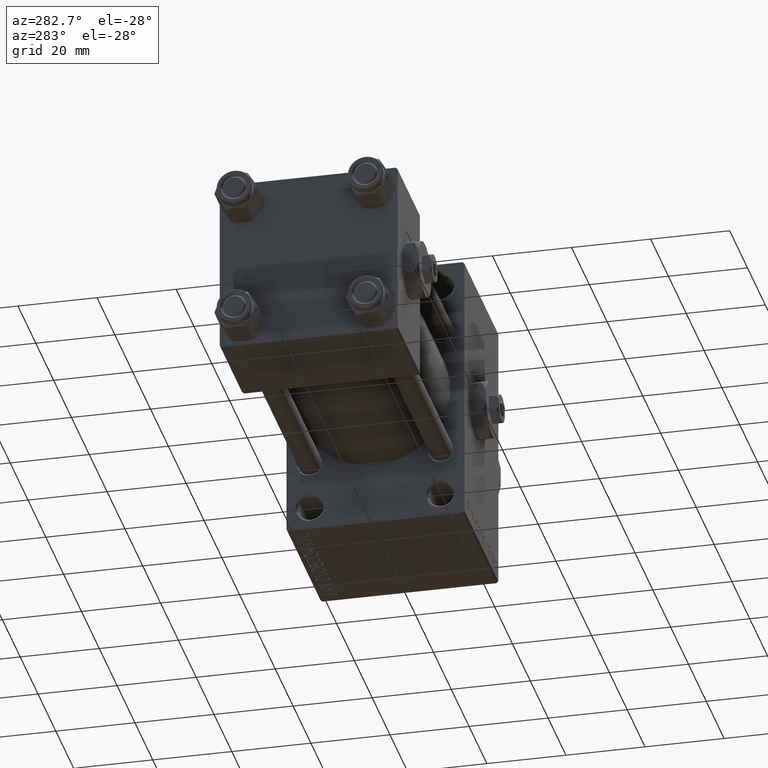
[diagram: clean part render]
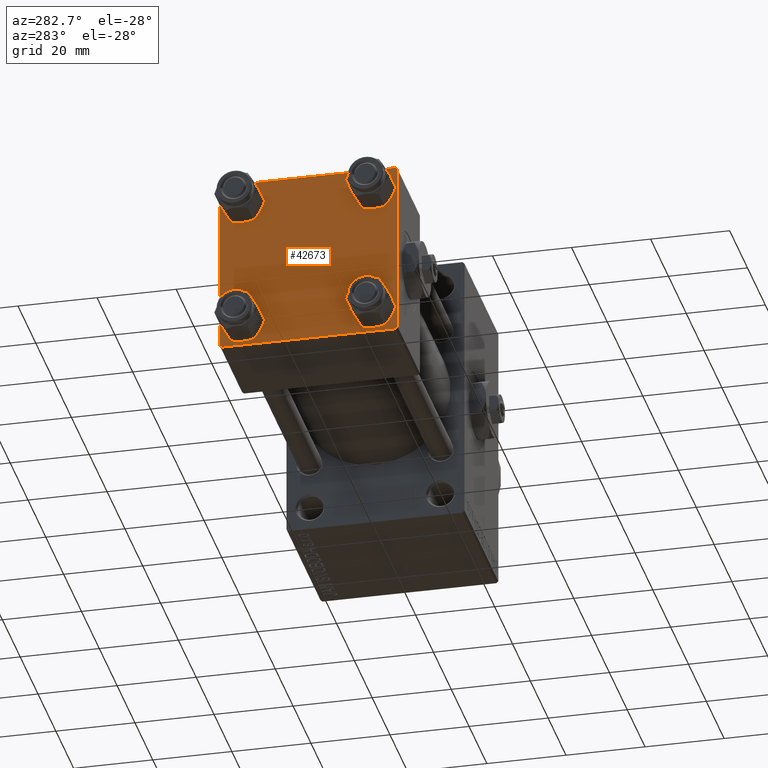
[diagram: same view with one face highlighted and labeled with its STEP entity id]
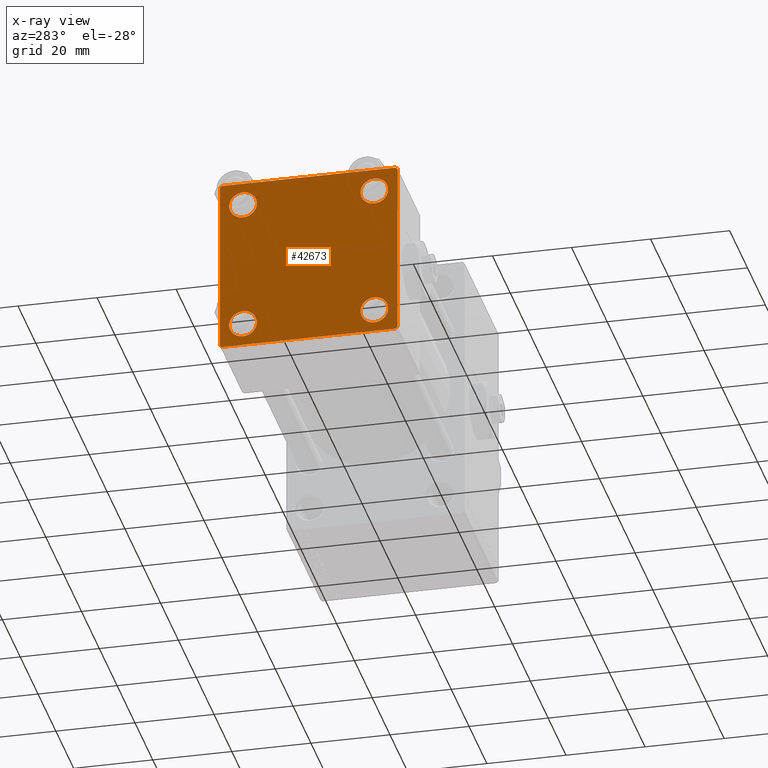
[diagram: x-ray of the same camera — body ghosted, the highlighted face saturated]
A machine part, auxiliary view. The second image highlights one B-rep face of the part: STEP entity #42673.
The next image is the same camera in x-ray: the body ghosted, the highlighted face saturated — about 0% of this face is hidden behind the body in this view.
In plain terms, the highlighted planar face has unit normal (-1, 0, 0).
Its self-contained STEP definition (entity closure, byte-faithful):
#55 = VERTEX_POINT ( 'NONE', #11902 ) ;
#270 = CARTESIAN_POINT ( 'NONE',  ( 0.000000000000000000, -16.59999999999999076, -16.60000000000000853 ) ) ;
#1012 = CIRCLE ( 'NONE', #21635, 3.499999999999996003 ) ;
#1420 = AXIS2_PLACEMENT_3D ( 'NONE', #37432, #19309, #12096 ) ;
#1573 = ORIENTED_EDGE ( 'NONE', *, *, #27414, .T. ) ;
#1712 = VERTEX_POINT ( 'NONE', #30876 ) ;
#2069 = CARTESIAN_POINT ( 'NONE',  ( 0.000000000000000000, -22.50000000000000000, -21.99999999999997158 ) ) ;
#2076 = VERTEX_POINT ( 'NONE', #19645 ) ;
#2130 = DIRECTION ( 'NONE',  ( -0.000000000000000000, 0.000000000000000000, 1.000000000000000000 ) ) ;
#2394 = LINE ( 'NONE', #10076, #33745 ) ;
#2403 = EDGE_CURVE ( 'NONE', #55, #25331, #40590, .T. ) ;
#2750 = CARTESIAN_POINT ( 'NONE',  ( 0.000000000000000000, 16.59999999999999787, -16.60000000000000497 ) ) ;
#3016 = CIRCLE ( 'NONE', #45901, 3.499999999999996003 ) ;
#3078 = CARTESIAN_POINT ( 'NONE',  ( 0.000000000000000000, 22.25000000000014566, -22.24999999999984013 ) ) ;
#3145 = DIRECTION ( 'NONE',  ( 0.000000000000000000, 0.000000000000000000, -1.000000000000000000 ) ) ;
#3733 = ORIENTED_EDGE ( 'NONE', *, *, #19178, .T. ) ;
#4532 = ORIENTED_EDGE ( 'NONE', *, *, #32065, .F. ) ;
#4629 = ORIENTED_EDGE ( 'NONE', *, *, #42349, .T. ) ;
#5745 = VECTOR ( 'NONE', #39318, 1000.000000000000000 ) ;
#5877 = VERTEX_POINT ( 'NONE', #2069 ) ;
#6184 = DIRECTION ( 'NONE',  ( 1.000000000000000000, -0.000000000000000000, 0.000000000000000000 ) ) ;
#6265 = VECTOR ( 'NONE', #27855, 999.9999999999998863 ) ;
#6845 = DIRECTION ( 'NONE',  ( -1.000000000000000000, 0.000000000000000000, -0.000000000000000000 ) ) ;
#7094 = FACE_OUTER_BOUND ( 'NONE', #11086, .T. ) ;
#7278 = EDGE_LOOP ( 'NONE', ( #16819, #13540 ) ) ;
#7512 = EDGE_CURVE ( 'NONE', #41635, #41842, #26837, .T. ) ;
#7689 = CARTESIAN_POINT ( 'NONE',  ( 0.000000000000000000, 16.59999999999999787, -16.60000000000000497 ) ) ;
#8179 = EDGE_CURVE ( 'NONE', #43696, #2076, #14905, .T. ) ;
#9341 = DIRECTION ( 'NONE',  ( 0.000000000000000000, 0.000000000000000000, 1.000000000000000000 ) ) ;
#9893 = CARTESIAN_POINT ( 'NONE',  ( 0.000000000000000000, 16.59999999999999787, 16.60000000000000497 ) ) ;
#10076 = CARTESIAN_POINT ( 'NONE',  ( 0.000000000000000000, 22.50000000000000000, -22.49999999999999645 ) ) ;
#10213 = CARTESIAN_POINT ( 'NONE',  ( 0.000000000000000000, -22.25000000000014566, -22.24999999999984013 ) ) ;
#10743 = AXIS2_PLACEMENT_3D ( 'NONE', #9893, #6184, #17857 ) ;
#11086 = EDGE_LOOP ( 'NONE', ( #27420, #26823, #31940, #3733, #34395, #19314, #4532, #14879 ) ) ;
#11699 = DIRECTION ( 'NONE',  ( 0.000000000000000000, 0.000000000000000000, 1.000000000000000000 ) ) ;
#11902 = CARTESIAN_POINT ( 'NONE',  ( 0.000000000000000000, 22.50000000000000000, -21.99999999999996803 ) ) ;
#12096 = DIRECTION ( 'NONE',  ( 0.000000000000000000, 0.000000000000000000, 1.000000000000000000 ) ) ;
#12987 = LINE ( 'NONE', #36052, #13941 ) ;
#13145 = CIRCLE ( 'NONE', #37696, 3.499999999999996003 ) ;
#13236 = LINE ( 'NONE', #10213, #5745 ) ;
#13540 = ORIENTED_EDGE ( 'NONE', *, *, #16197, .T. ) ;
#13725 = EDGE_LOOP ( 'NONE', ( #44967, #31138 ) ) ;
#13941 = VECTOR ( 'NONE', #44269, 1000.000000000000114 ) ;
#14055 = FACE_BOUND ( 'NONE', #29459, .T. ) ;
#14879 = ORIENTED_EDGE ( 'NONE', *, *, #36908, .T. ) ;
#14905 = LINE ( 'NONE', #48682, #6265 ) ;
#15101 = CARTESIAN_POINT ( 'NONE',  ( 0.000000000000000000, -16.59999999999999076, 20.10000000000000853 ) ) ;
#15617 = CARTESIAN_POINT ( 'NONE',  ( 0.000000000000000000, 16.59999999999999787, 13.10000000000000675 ) ) ;
#16128 = DIRECTION ( 'NONE',  ( 1.000000000000000000, -0.000000000000000000, 0.000000000000000000 ) ) ;
#16197 = EDGE_CURVE ( 'NONE', #37061, #34586, #41336, .T. ) ;
#16635 = VERTEX_POINT ( 'NONE', #43104 ) ;
#16737 = CARTESIAN_POINT ( 'NONE',  ( 0.000000000000000000, 22.50000000000000000, 22.50000000000000355 ) ) ;
#16819 = ORIENTED_EDGE ( 'NONE', *, *, #30355, .T. ) ;
#17466 = EDGE_LOOP ( 'NONE', ( #22459, #4629 ) ) ;
#17777 = FACE_BOUND ( 'NONE', #13725, .T. ) ;
#17857 = DIRECTION ( 'NONE',  ( 0.000000000000000000, 0.000000000000000000, 1.000000000000000000 ) ) ;
#18928 = VERTEX_POINT ( 'NONE', #33618 ) ;
#19178 = EDGE_CURVE ( 'NONE', #28405, #5877, #13236, .T. ) ;
#19309 = DIRECTION ( 'NONE',  ( 1.000000000000000000, -0.000000000000000000, 0.000000000000000000 ) ) ;
#19314 = ORIENTED_EDGE ( 'NONE', *, *, #8179, .T. ) ;
#19645 = CARTESIAN_POINT ( 'NONE',  ( 0.000000000000000000, -21.99999999999997868, 22.50000000000000000 ) ) ;
#19805 = CARTESIAN_POINT ( 'NONE',  ( 0.000000000000000000, 16.59999999999999787, 16.60000000000000497 ) ) ;
#20082 = CARTESIAN_POINT ( 'NONE',  ( 0.000000000000000000, 21.99999999999999289, -22.49999999999999645 ) ) ;
#20202 = DIRECTION ( 'NONE',  ( 0.000000000000000000, 0.000000000000000000, -1.000000000000000000 ) ) ;
#20457 = EDGE_CURVE ( 'NONE', #18928, #16635, #1012, .T. ) ;
#20466 = DIRECTION ( 'NONE',  ( 1.000000000000000000, -0.000000000000000000, 0.000000000000000000 ) ) ;
#21078 = CIRCLE ( 'NONE', #22666, 3.499999999999996003 ) ;
#21080 = CARTESIAN_POINT ( 'NONE',  ( 0.000000000000000000, -16.59999999999999076, 16.60000000000000853 ) ) ;
#21154 = CARTESIAN_POINT ( 'NONE',  ( 0.000000000000000000, -21.99999999999997158, -22.50000000000000711 ) ) ;
#21269 = AXIS2_PLACEMENT_3D ( 'NONE', #43875, #6845, #2130 ) ;
#21635 = AXIS2_PLACEMENT_3D ( 'NONE', #7689, #16128, #30533 ) ;
#22459 = ORIENTED_EDGE ( 'NONE', *, *, #7512, .T. ) ;
#22666 = AXIS2_PLACEMENT_3D ( 'NONE', #270, #37526, #11699 ) ;
#24009 = DIRECTION ( 'NONE',  ( 1.000000000000000000, -0.000000000000000000, 0.000000000000000000 ) ) ;
#24651 = VERTEX_POINT ( 'NONE', #29284 ) ;
#25034 = CARTESIAN_POINT ( 'NONE',  ( 0.000000000000000000, 16.59999999999999787, 20.10000000000000142 ) ) ;
#25331 = VERTEX_POINT ( 'NONE', #20082 ) ;
#26689 = CARTESIAN_POINT ( 'NONE',  ( 0.000000000000000000, -16.59999999999999076, 13.10000000000001030 ) ) ;
#26823 = ORIENTED_EDGE ( 'NONE', *, *, #2403, .T. ) ;
#26837 = CIRCLE ( 'NONE', #35553, 3.499999999999996003 ) ;
#27045 = AXIS2_PLACEMENT_3D ( 'NONE', #19805, #24009, #9341 ) ;
#27414 = EDGE_CURVE ( 'NONE', #16635, #18928, #13145, .T. ) ;
#27420 = ORIENTED_EDGE ( 'NONE', *, *, #38204, .T. ) ;
#27855 = DIRECTION ( 'NONE',  ( -0.000000000000000000, 0.7071067811865525687, 0.7071067811865425767 ) ) ;
#28405 = VERTEX_POINT ( 'NONE', #21154 ) ;
#29284 = CARTESIAN_POINT ( 'NONE',  ( 0.000000000000000000, -16.59999999999999076, -13.10000000000001030 ) ) ;
#29457 = PLANE ( 'NONE',  #21269 ) ;
#29459 = EDGE_LOOP ( 'NONE', ( #1573, #39330 ) ) ;
#29906 = DIRECTION ( 'NONE',  ( -0.000000000000000000, -0.7071067811865426878, -0.7071067811865524577 ) ) ;
#29968 = CARTESIAN_POINT ( 'NONE',  ( 0.000000000000000000, -22.50000000000000000, 22.50000000000000000 ) ) ;
#30355 = EDGE_CURVE ( 'NONE', #34586, #37061, #32167, .T. ) ;
#30450 = VERTEX_POINT ( 'NONE', #34468 ) ;
#30533 = DIRECTION ( 'NONE',  ( 0.000000000000000000, 0.000000000000000000, 1.000000000000000000 ) ) ;
#30582 = VECTOR ( 'NONE', #43802, 1000.000000000000000 ) ;
#30876 = CARTESIAN_POINT ( 'NONE',  ( 0.000000000000000000, -16.59999999999999076, -20.10000000000000497 ) ) ;
#30888 = CARTESIAN_POINT ( 'NONE',  ( 0.000000000000000000, 22.50000000000000000, 22.50000000000000355 ) ) ;
#30893 = EDGE_CURVE ( 'NONE', #1712, #24651, #21078, .T. ) ;
#31138 = ORIENTED_EDGE ( 'NONE', *, *, #30893, .T. ) ;
#31940 = ORIENTED_EDGE ( 'NONE', *, *, #36453, .T. ) ;
#32065 = EDGE_CURVE ( 'NONE', #30450, #2076, #36067, .T. ) ;
#32167 = CIRCLE ( 'NONE', #10743, 3.499999999999996003 ) ;
#33213 = CARTESIAN_POINT ( 'NONE',  ( 0.000000000000000000, 22.50000000000000000, 21.99999999999999645 ) ) ;
#33414 = FACE_BOUND ( 'NONE', #7278, .T. ) ;
#33618 = CARTESIAN_POINT ( 'NONE',  ( 0.000000000000000000, 16.59999999999999787, -20.10000000000000142 ) ) ;
#33745 = VECTOR ( 'NONE', #40406, 1000.000000000000000 ) ;
#34395 = ORIENTED_EDGE ( 'NONE', *, *, #36519, .F. ) ;
#34468 = CARTESIAN_POINT ( 'NONE',  ( 0.000000000000000000, 21.99999999999999289, 22.50000000000000355 ) ) ;
#34586 = VERTEX_POINT ( 'NONE', #25034 ) ;
#35491 = DIRECTION ( 'NONE',  ( 0.000000000000000000, 0.000000000000000000, 1.000000000000000000 ) ) ;
#35553 = AXIS2_PLACEMENT_3D ( 'NONE', #46074, #20466, #39092 ) ;
#36052 = CARTESIAN_POINT ( 'NONE',  ( 0.000000000000000000, 22.24999999999999645, 22.24999999999999645 ) ) ;
#36067 = LINE ( 'NONE', #16737, #30582 ) ;
#36453 = EDGE_CURVE ( 'NONE', #25331, #28405, #2394, .T. ) ;
#36519 = EDGE_CURVE ( 'NONE', #43696, #5877, #44872, .T. ) ;
#36763 = DIRECTION ( 'NONE',  ( 0.000000000000000000, 0.000000000000000000, 1.000000000000000000 ) ) ;
#36908 = EDGE_CURVE ( 'NONE', #30450, #41595, #12987, .T. ) ;
#37061 = VERTEX_POINT ( 'NONE', #15617 ) ;
#37432 = CARTESIAN_POINT ( 'NONE',  ( 0.000000000000000000, -16.59999999999999076, -16.60000000000000853 ) ) ;
#37526 = DIRECTION ( 'NONE',  ( 1.000000000000000000, -0.000000000000000000, 0.000000000000000000 ) ) ;
#37696 = AXIS2_PLACEMENT_3D ( 'NONE', #2750, #44493, #36763 ) ;
#38204 = EDGE_CURVE ( 'NONE', #41595, #55, #45807, .T. ) ;
#39092 = DIRECTION ( 'NONE',  ( 0.000000000000000000, 0.000000000000000000, 1.000000000000000000 ) ) ;
#39318 = DIRECTION ( 'NONE',  ( 0.000000000000000000, -0.7071067811865426878, 0.7071067811865524577 ) ) ;
#39330 = ORIENTED_EDGE ( 'NONE', *, *, #20457, .T. ) ;
#40406 = DIRECTION ( 'NONE',  ( 0.000000000000000000, -1.000000000000000000, -2.312964634635742957E-16 ) ) ;
#40590 = LINE ( 'NONE', #3078, #46604 ) ;
#41054 = CARTESIAN_POINT ( 'NONE',  ( 0.000000000000000000, -22.50000000000000000, 22.00000000000000000 ) ) ;
#41119 = FACE_BOUND ( 'NONE', #17466, .T. ) ;
#41336 = CIRCLE ( 'NONE', #27045, 3.499999999999996003 ) ;
#41595 = VERTEX_POINT ( 'NONE', #33213 ) ;
#41635 = VERTEX_POINT ( 'NONE', #15101 ) ;
#41693 = EDGE_CURVE ( 'NONE', #24651, #1712, #44260, .T. ) ;
#41842 = VERTEX_POINT ( 'NONE', #26689 ) ;
#42349 = EDGE_CURVE ( 'NONE', #41842, #41635, #3016, .T. ) ;
#42571 = VECTOR ( 'NONE', #20202, 1000.000000000000000 ) ;
#42673 = ADVANCED_FACE ( 'NONE', ( #41119, #17777, #14055, #33414, #7094 ), #29457, .T. ) ;
#43104 = CARTESIAN_POINT ( 'NONE',  ( 0.000000000000000000, 16.59999999999999787, -13.10000000000000675 ) ) ;
#43459 = DIRECTION ( 'NONE',  ( 1.000000000000000000, -0.000000000000000000, 0.000000000000000000 ) ) ;
#43696 = VERTEX_POINT ( 'NONE', #41054 ) ;
#43802 = DIRECTION ( 'NONE',  ( 0.000000000000000000, -1.000000000000000000, -7.709882115452476934E-17 ) ) ;
#43875 = CARTESIAN_POINT ( 'NONE',  ( 0.000000000000000000, 0.000000000000000000, 0.000000000000000000 ) ) ;
#44260 = CIRCLE ( 'NONE', #1420, 3.499999999999996003 ) ;
#44269 = DIRECTION ( 'NONE',  ( 0.000000000000000000, 0.7071067811865474617, -0.7071067811865474617 ) ) ;
#44493 = DIRECTION ( 'NONE',  ( 1.000000000000000000, -0.000000000000000000, 0.000000000000000000 ) ) ;
#44872 = LINE ( 'NONE', #29968, #46467 ) ;
#44967 = ORIENTED_EDGE ( 'NONE', *, *, #41693, .T. ) ;
#45807 = LINE ( 'NONE', #30888, #42571 ) ;
#45901 = AXIS2_PLACEMENT_3D ( 'NONE', #21080, #43459, #35491 ) ;
#46074 = CARTESIAN_POINT ( 'NONE',  ( 0.000000000000000000, -16.59999999999999076, 16.60000000000000853 ) ) ;
#46467 = VECTOR ( 'NONE', #3145, 1000.000000000000000 ) ;
#46604 = VECTOR ( 'NONE', #29906, 1000.000000000000000 ) ;
#48682 = CARTESIAN_POINT ( 'NONE',  ( -0.000000000000000000, -22.24999999999984013, 22.25000000000015277 ) ) ;